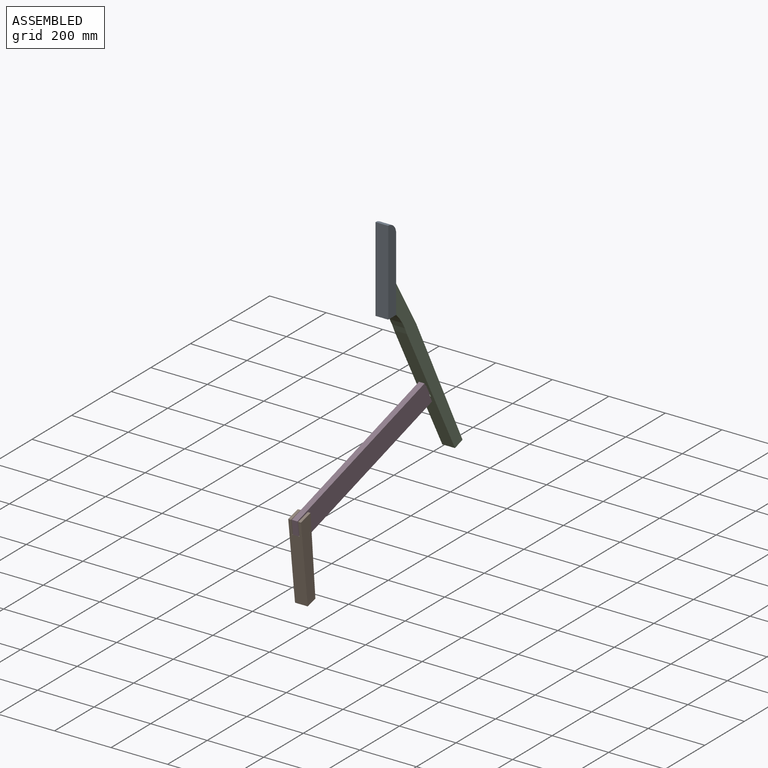
[diagram: assembled view]
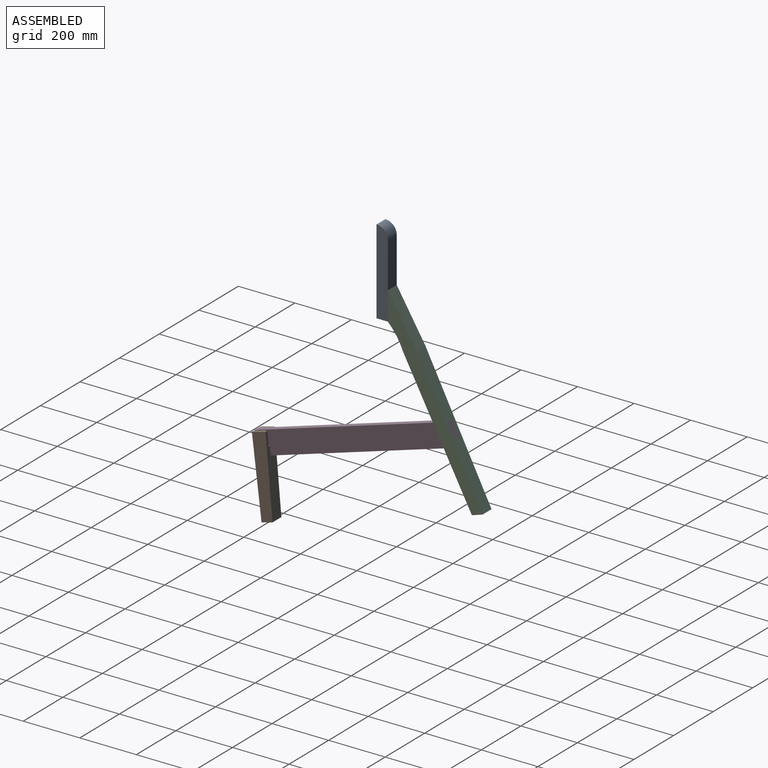
[diagram: assembled view, second angle]
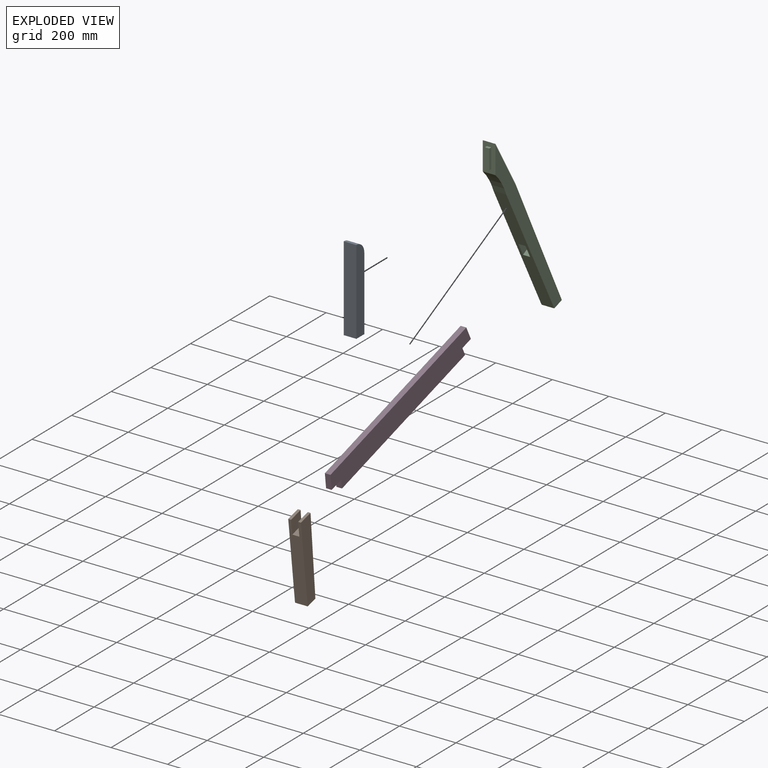
[diagram: exploded view]
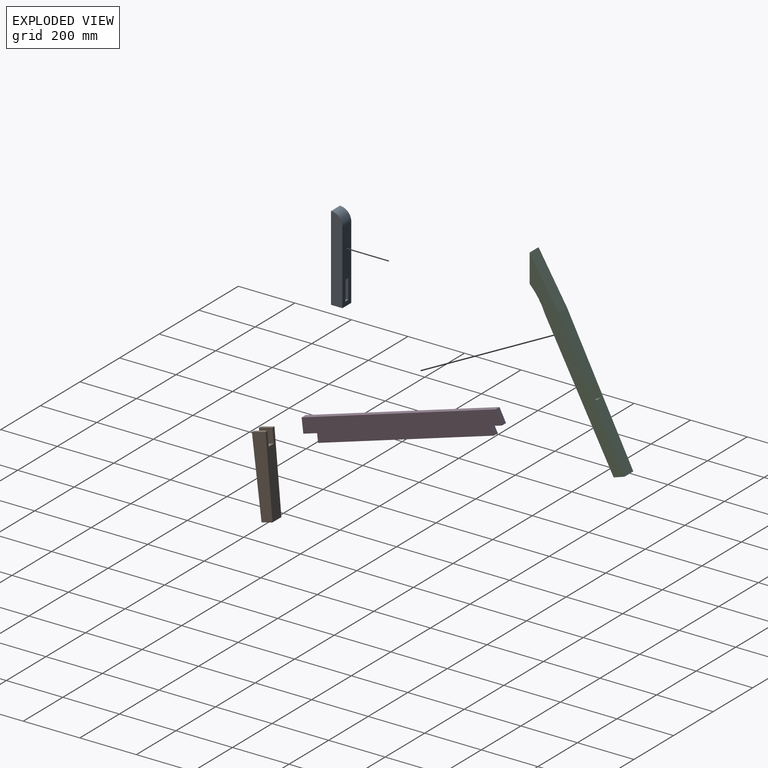
[diagram: exploded view, second angle]
ASSEMBLY  parts=4 mates=3
PART A: 11 faces, bbox 45x40x300 mm
  f0: plane 260.7x45mm, normal (0,1,0), area 10681.3mm2, adj f1,f3,f4,f5,f6,f7,f8,f9
  f1: cylinder r=40.01mm len=45mm, axis (-1,0,0), area 2796.3mm2, adj f0,f2,f4,f5
  f2: plane 300x45mm, normal (0,-1,0), area 13500mm2, adj f1,f3,f4,f5
  f3: plane 45x40mm, normal (0,0,-1), area 1800mm2, adj f0,f2,f4,f5
  f4: plane 300x40mm, normal (1,0,0), area 11656.8mm2, adj f0,f1,f2,f3
  f5: plane 300x40mm, normal (-1,0,0), area 11656.8mm2, adj f0,f1,f2,f3
  f6: plane 70x10mm, normal (1,0,0), area 700mm2, adj f0,f7,f9,f10
  f7: plane 15x10mm, normal (0,0,-1), area 150mm2, adj f0,f6,f8,f10
  f8: plane 70x10mm, normal (-1,0,0), area 700mm2, adj f0,f7,f9,f10
  f9: plane 15x10mm, normal (0,0,1), area 150mm2, adj f0,f6,f8,f10
  f10: plane 70x15mm, normal (0,1,0), area 1050mm2, adj f6,f7,f8,f9
PART B: 10 faces, bbox 45x89.4x280 mm
  f0: plane 50x10mm, normal (0,0,1), area 500mm2, adj f1,f3,f6,f7
  f1: plane 280x45mm, normal (0,-0.99,0.14), area 11474mm2, adj f0,f2,f4,f5,f6,f7,f8,f9
  f2: plane 45x40mm, normal (0,0,-1), area 1800mm2, adj f1,f3,f5,f6
  f3: plane 280x49.37mm, normal (0,0.98,-0.17), area 11544.4mm2, adj f0,f2,f4,f5,f6,f7,f8,f9
  f4: plane 50x10mm, normal (0,0,1), area 500mm2, adj f1,f3,f5,f8
  f5: plane 280x89.37mm, normal (1,0,0), area 12600mm2, adj f1,f2,f3,f4
  f6: plane 280x89.37mm, normal (-1,0,0), area 12600mm2, adj f0,f1,f2,f3
  f7: plane 56.96x49.51mm, normal (1,0,0), area 2425.3mm2, adj f0,f1,f3,f9
  f8: plane 56.96x49.51mm, normal (-1,0,0), area 2425.3mm2, adj f1,f3,f4,f9
  f9: plane 48.28x25mm, normal (0,-0.01,1), area 1207mm2, adj f1,f3,f7,f8
PART C: 17 faces, bbox 45x160.9x700 mm
  f0: plane 510x80.33mm, normal (0,0.99,0.16), area 21982.7mm2, adj f3,f4,f6,f7,f13,f14,f15,f16
  f1: plane 510x89.93mm, normal (0,-0.98,-0.17), area 22054mm2, adj f3,f5,f6,f7,f13,f14,f15,f16
  f2: plane 95.11x45mm, normal (0,-0.95,0.31), area 3450mm2, adj f4,f5,f6,f7,f8,f9,f10,f11
  f3: plane 45x40mm, normal (0,0,-1), area 1800mm2, adj f0,f1,f6,f7
  f4: plane 190x45mm, normal (0,0.97,0.23), area 8784.3mm2, adj f0,f2,f6,f7
  f5: cylinder r=234mm len=94.89mm, axis (-1,0,0), area 4462mm2, adj f1,f2,f6,f7
  f6: plane 700x156.02mm, normal (1,0,0), area 29921.1mm2, adj f0,f1,f2,f3,f4,f5
  f7: plane 700x156.02mm, normal (-1,0,0), area 29921.1mm2, adj f0,f1,f2,f3,f4,f5
  f8: plane 69.66x31.14mm, normal (-1,0,0), area 700mm2, adj f2,f9,f11,f12
  f9: plane 15x9.51mm, normal (0,-0.31,-0.95), area 150mm2, adj f2,f8,f10,f12
  f10: plane 69.66x31.14mm, normal (1,0,0), area 700mm2, adj f2,f9,f11,f12
  f11: plane 15x9.51mm, normal (0,0.31,0.95), area 150mm2, adj f2,f8,f10,f12
  f12: plane 66.57x21.63mm, normal (0,-0.95,0.31), area 1050mm2, adj f8,f9,f10,f11
  f13: plane 43.97x25mm, normal (0,0.17,-0.98), area 1116.1mm2, adj f0,f1,f14,f16
  f14: plane 56.99x51.75mm, normal (1,0,0), area 2209.4mm2, adj f0,f1,f13,f15
  f15: plane 43.07x25mm, normal (0,-0.17,0.98), area 1093.2mm2, adj f0,f1,f14,f16
  f16: plane 56.99x51.75mm, normal (-1,0,0), area 2209.4mm2, adj f0,f1,f13,f15
PART D: 10 faces, bbox 20x734.9x80 mm
  f0: plane 717.24x20mm, normal (0,0,1), area 14344.8mm2, adj f1,f7,f8,f9
  f1: plane 50x20mm, normal (0,-0.98,0.17), area 1015.4mm2, adj f0,f2,f8,f9
  f2: plane 50.77x20mm, normal (0,0,-1), area 1015.4mm2, adj f1,f3,f8,f9
  f3: plane 30x20mm, normal (0,-0.98,0.17), area 609.3mm2, adj f2,f4,f8,f9
  f4: plane 650x20mm, normal (0,0,-1), area 13000mm2, adj f3,f5,f8,f9
  f5: plane 30x20mm, normal (0,0.98,0.17), area 609.3mm2, adj f4,f6,f8,f9
  f6: plane 44.68x20mm, normal (0,0,-1), area 893.6mm2, adj f5,f7,f8,f9
  f7: plane 50x20mm, normal (0,0.98,0.17), area 1015.4mm2, adj f0,f6,f8,f9
  f8: plane 734.87x80mm, normal (1,0,0), area 55644mm2, adj f0,f1,f2,f3,f4,f5,f6,f7
  f9: plane 734.87x80mm, normal (-1,0,0), area 55644mm2, adj f0,f1,f2,f3,f4,f5,f6,f7
PLACE A t=(-454.97,-933.3,178.44)mm
PLACE B rot(axis=(1,0,0),15deg) t=(-454.97,-1218.37,-545.54)mm
PLACE C rot(axis=(1,0,0),18deg) t=(-454.97,-644.18,115.89)mm
PLACE D rot(axis=(1,0,0),17deg) t=(-464.97,-932.14,-362.99)mm
MATE fastened D.f7 <-> C.f0  axis (0,0.89,0.45) through (-454.97,-696.74,-265.1)mm
MATE fastened B.f1 <-> D.f1  axis (0,-0.99,-0.12) through (-454.97,-1388.18,-501.99)mm
MATE fastened C.f12 <-> A.f10  axis (0,-1,0) through (-454.97,-923.3,78.44)mm
